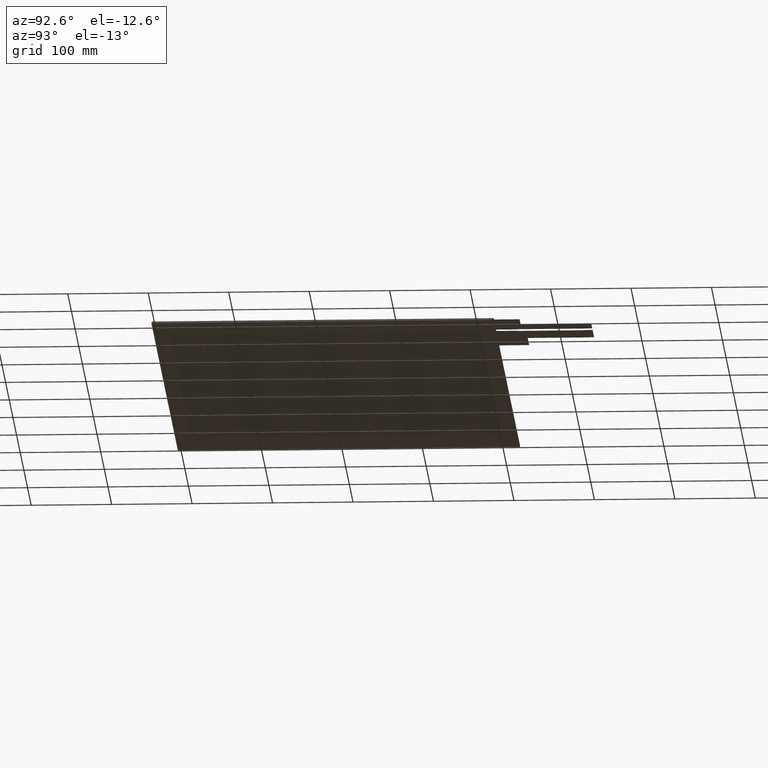
[diagram: clean part render]
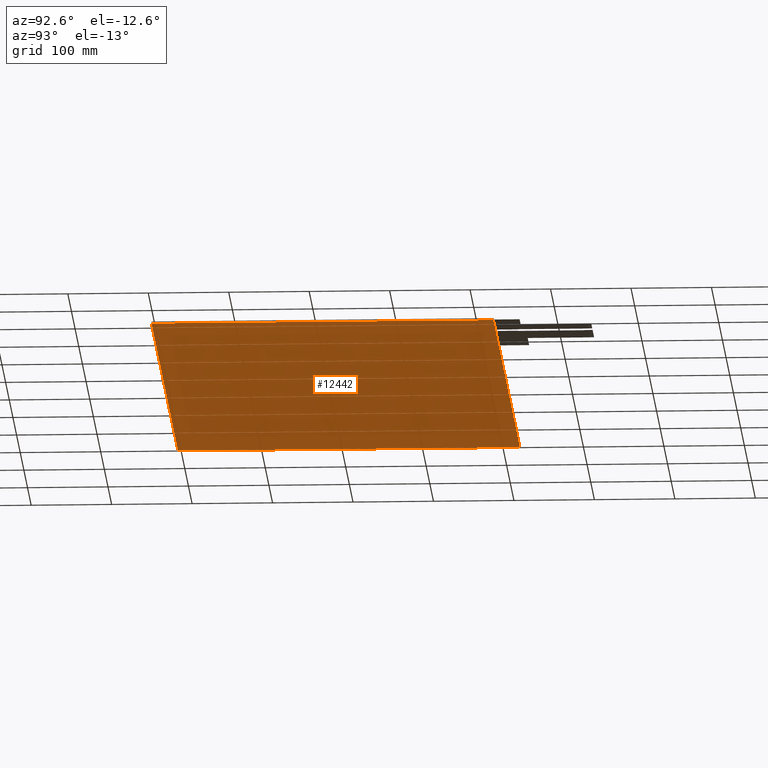
[diagram: same view with one face highlighted and labeled with its STEP entity id]
A machine part, auxiliary view. The second image highlights one B-rep face of the part: STEP entity #12442.
In plain terms, the highlighted planar face has unit normal (0, 0, -1).
Its self-contained STEP definition (entity closure, byte-faithful):
#708=FACE_OUTER_BOUND('',#1306,.T.);
#1306=EDGE_LOOP('',(#11255,#11256,#11257,#11258,#11259,#11260,#11261,#11262));
#1307=LINE('',#16055,#3051);
#1322=LINE('',#16085,#3066);
#1324=LINE('',#16089,#3068);
#1326=LINE('',#16094,#3070);
#1329=LINE('',#16099,#3073);
#1331=LINE('',#16103,#3075);
#3049=LINE('',#19581,#4793);
#3050=LINE('',#19583,#4794);
#3051=VECTOR('',#13081,10.);
#3066=VECTOR('',#13100,10.);
#3068=VECTOR('',#13104,10.);
#3070=VECTOR('',#13108,10.);
#3073=VECTOR('',#13113,10.);
#3075=VECTOR('',#13117,10.);
#4793=VECTOR('',#16043,10.);
#4794=VECTOR('',#16046,10.);
#4795=VERTEX_POINT('',#16053);
#4796=VERTEX_POINT('',#16054);
#4809=VERTEX_POINT('',#16084);
#4810=VERTEX_POINT('',#16088);
#4811=VERTEX_POINT('',#16092);
#4812=VERTEX_POINT('',#16093);
#4813=VERTEX_POINT('',#16098);
#4814=VERTEX_POINT('',#16102);
#5971=EDGE_CURVE('',#4795,#4796,#1307,.T.);
#5986=EDGE_CURVE('',#4809,#4796,#1322,.T.);
#5988=EDGE_CURVE('',#4809,#4810,#1324,.T.);
#5990=EDGE_CURVE('',#4811,#4812,#1326,.T.);
#5993=EDGE_CURVE('',#4813,#4812,#1329,.T.);
#5995=EDGE_CURVE('',#4813,#4814,#1331,.T.);
#7733=EDGE_CURVE('',#4811,#4810,#3049,.T.);
#7734=EDGE_CURVE('',#4795,#4814,#3050,.T.);
#11255=ORIENTED_EDGE('',*,*,#5971,.F.);
#11256=ORIENTED_EDGE('',*,*,#7734,.T.);
#11257=ORIENTED_EDGE('',*,*,#5995,.F.);
#11258=ORIENTED_EDGE('',*,*,#5993,.T.);
#11259=ORIENTED_EDGE('',*,*,#5990,.F.);
#11260=ORIENTED_EDGE('',*,*,#7733,.T.);
#11261=ORIENTED_EDGE('',*,*,#5988,.F.);
#11262=ORIENTED_EDGE('',*,*,#5986,.T.);
#11848=PLANE('',#13076);
#12442=ADVANCED_FACE('',(#708),#11848,.T.);
#13076=AXIS2_PLACEMENT_3D('',#19585,#16049,#16050);
#13081=DIRECTION('',(-0.707106781186548,-0.707106781186548,0.));
#13100=DIRECTION('',(-3.34215774111054E-16,1.,0.));
#13104=DIRECTION('',(0.707106781186548,-0.707106781186548,0.));
#13108=DIRECTION('',(0.707106781186548,0.707106781186548,0.));
#13113=DIRECTION('',(0.,-1.,0.));
#13117=DIRECTION('',(-0.707106781186548,0.707106781186548,0.));
#16043=DIRECTION('',(-1.,-1.46745711639839E-16,0.));
#16046=DIRECTION('',(1.,4.89152372132796E-17,0.));
#16049=DIRECTION('center_axis',(0.,0.,-1.));
#16050=DIRECTION('ref_axis',(-1.,0.,0.));
#16053=CARTESIAN_POINT('',(-359.,218.525,-2.35));
#16054=CARTESIAN_POINT('',(-360.,217.525,-2.35));
#16055=CARTESIAN_POINT('',(-321.8625,255.6625,-2.35));
#16084=CARTESIAN_POINT('',(-360.,-205.675,-2.35));
#16085=CARTESIAN_POINT('',(-360.,218.525,-2.35));
#16088=CARTESIAN_POINT('',(-359.,-206.675,-2.35));
#16089=CARTESIAN_POINT('',(-321.8625,-243.8125,-2.35));
#16092=CARTESIAN_POINT('',(365.3,-206.675,-2.35));
#16093=CARTESIAN_POINT('',(366.3,-205.675,-2.35));
#16094=CARTESIAN_POINT('',(328.1625,-243.8125,-2.35));
#16098=CARTESIAN_POINT('',(366.3,217.525,-2.35));
#16099=CARTESIAN_POINT('',(366.3,-206.675,-2.35));
#16102=CARTESIAN_POINT('',(365.3,218.525,-2.35));
#16103=CARTESIAN_POINT('',(328.1625,255.6625,-2.35));
#19581=CARTESIAN_POINT('',(-360.,-206.675,-2.35));
#19583=CARTESIAN_POINT('',(366.3,218.525,-2.35));
#19585=CARTESIAN_POINT('Origin',(3.14999999999998,5.92500000000026,-2.35));